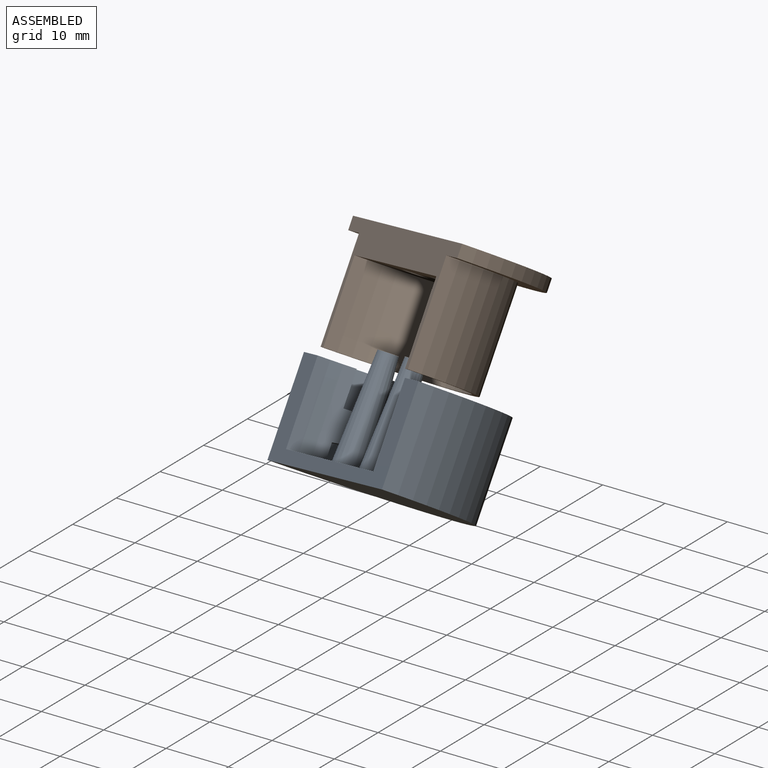
[diagram: assembled view]
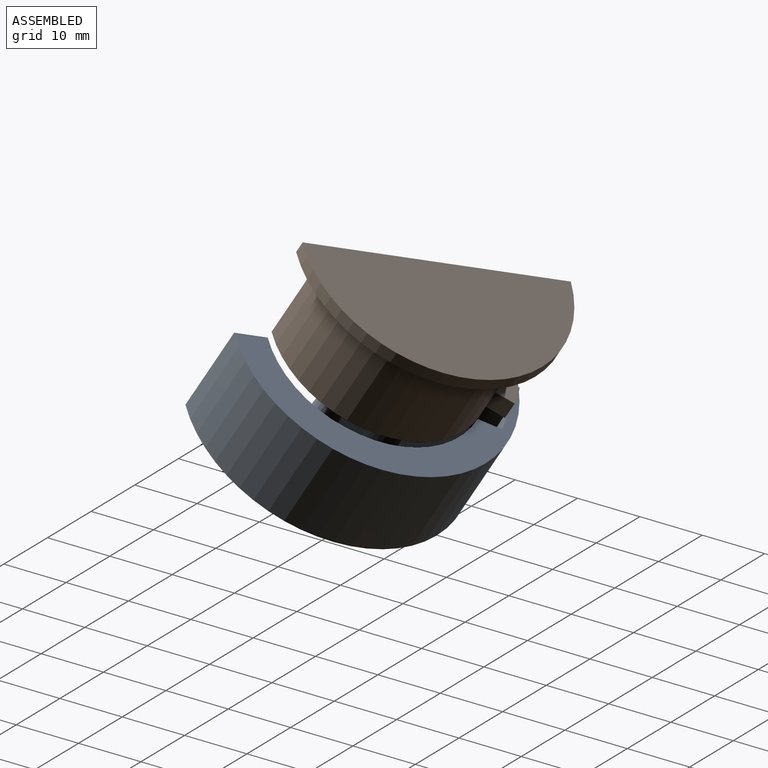
[diagram: assembled view, second angle]
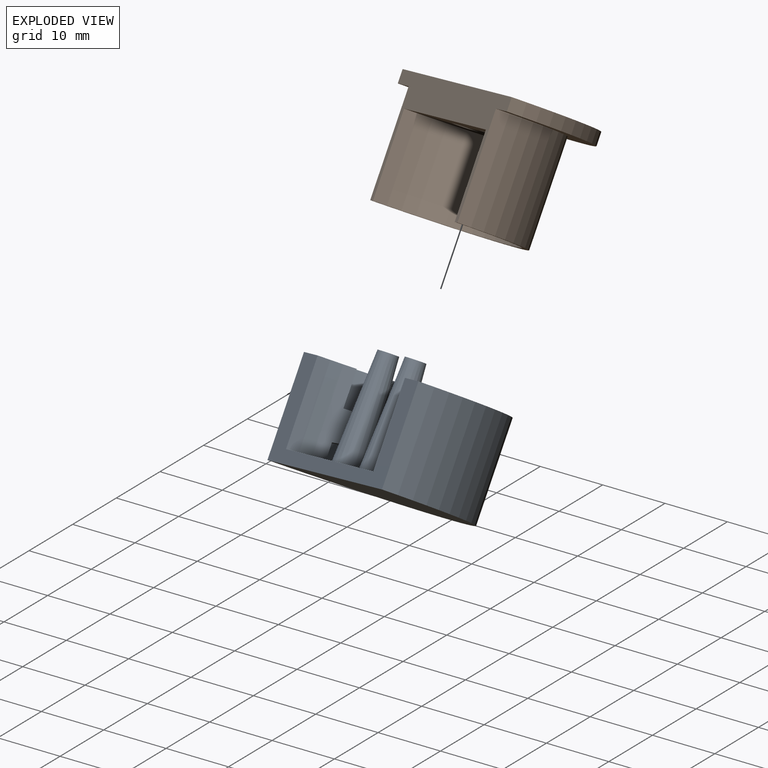
[diagram: exploded view]
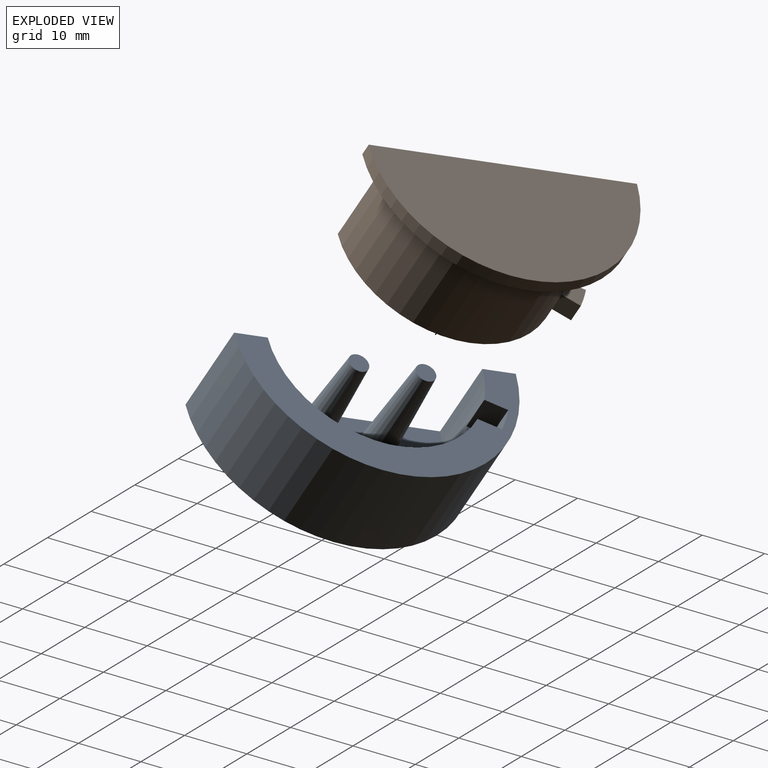
[diagram: exploded view, second angle]
ASSEMBLY  parts=2 mates=2
PART A: 21 faces, bbox 42x21x18 mm
  f0: cylinder r=16mm len=29.19mm, axis (0,0,-1), area 142.7mm2, adj f1,f5,f7,f10,f12,f15
  f1: plane 42x21mm, normal (0,0,1), area 276.5mm2, adj f0,f2,f4,f5,f11,f13,f15
  f2: cylinder r=16mm len=29.19mm, axis (0,0,-1), area 214.6mm2, adj f1,f3,f5,f7,f8,f9,f13,f14
  f3: plane 34.89x14.03mm, normal (0,0,1), area 137.7mm2, adj f2,f11,f13,f14
  f4: cylinder r=21mm len=42mm, axis (0,0,-1), area 989.6mm2, adj f1,f5,f6
  f5: plane 42x15mm, normal (0,-1,0), area 214mm2, adj f0,f1,f2,f4,f6,f7
  f6: plane 42x21mm, normal (0,0,-1), area 692.7mm2, adj f4,f5
  f7: plane 36.65x19.5mm, normal (0,0,1), area 514.7mm2, adj f0,f2,f5,f9,f11,f12,f17,f19
  f8: plane 32.57x10.45mm, normal (0,0,-1), area 119.9mm2, adj f2,f11,f14,f16
  f9: plane 3.29x2.8mm, normal (0.34,0.94,0), area 9.8mm2, adj f2,f7,f11,f16
  f10: plane 34.89x14.03mm, normal (0,0,-1), area 137.7mm2, adj f0,f11,f12,f15
  f11: cylinder r=19.5mm len=36.65mm, axis (0,0,1), area 355.9mm2, adj f1,f3,f7,f8,f9,f10,f12,f13
  f12: plane 11x3.29mm, normal (-0.34,0.94,0), area 38.5mm2, adj f0,f7,f10,f11
  f13: plane 5.5x3.29mm, normal (0.34,0.94,0), area 19.3mm2, adj f1,f2,f3,f11
  f14: plane 4x3.37mm, normal (0.34,-0.94,0), area 14.4mm2, adj f2,f3,f8,f11
  f15: plane 3.37x2mm, normal (-0.34,-0.94,0), area 7.2mm2, adj f0,f1,f10,f11
  f16: plane 5.76x5.68mm, normal (0.05,0.13,-0.99), area 17.9mm2, adj f2,f8,f9,f11
  f17: cone r=2.5mm half-angle=3.6deg, axis (0,0,-1), area 201.5mm2, adj f7,f18
  f18: plane 3x3mm, normal (0,0,1), area 7.1mm2, adj f17
  f19: cone r=2.5mm half-angle=3.6deg, axis (0,0,-1), area 201.5mm2, adj f7,f20
  f20: plane 3x3mm, normal (0,0,1), area 7.1mm2, adj f19
PART B: 17 faces, bbox 40x20x17.8 mm
  f0: cylinder r=16mm len=32mm, axis (0,0,-1), area 785.8mm2, adj f1,f3,f11,f12,f13,f15,f16
  f1: plane 40x17.8mm, normal (0,-1,0), area 201.6mm2, adj f0,f2,f3,f4,f5,f10,f11
  f2: cylinder r=15mm len=30mm, axis (0,0,-1), area 603.2mm2, adj f1,f3,f5
  f3: plane 32x16mm, normal (0,0,1), area 48.7mm2, adj f0,f1,f2
  f4: plane 40x20mm, normal (0,0,-1), area 628.3mm2, adj f1,f10
  f5: plane 30x15mm, normal (0,0,1), area 331.9mm2, adj f1,f2,f6,f8
  f6: cylinder r=1.85mm len=3.7mm, axis (0,0,-1), area 34.9mm2, adj f5,f7
  f7: plane 3.7x3.7mm, normal (0,0,1), area 10.8mm2, adj f6
  f8: cylinder r=1.85mm len=3.7mm, axis (0,0,-1), area 34.9mm2, adj f5,f9
  f9: plane 3.7x3.7mm, normal (0,0,1), area 10.8mm2, adj f8
  f10: cylinder r=20mm len=40mm, axis (0,0,-1), area 125.7mm2, adj f1,f4,f11
  f11: plane 40x20mm, normal (0,0,1), area 226.2mm2, adj f0,f1,f10
  f12: plane 4.05x4.02mm, normal (0,0,1), area 9.2mm2, adj f0,f14,f15,f16
  f13: plane 4.05x4.02mm, normal (0,0,-1), area 9.2mm2, adj f0,f14,f15,f16
  f14: cylinder r=19mm len=3mm, axis (0,0,1), area 9.9mm2, adj f12,f13,f15,f16
  f15: plane 3x2.8mm, normal (0.36,-0.93,0), area 9mm2, adj f0,f12,f13,f14
  f16: plane 3x2.57mm, normal (-0.52,0.86,0), area 9mm2, adj f0,f12,f13,f14
PLACE A rot(axis=(-0.64,-0.19,-0.74),48.9deg) t=(-79.84,-48.17,87.21)mm
PLACE B rot(axis=(0.31,0.91,-0.27),170.8deg) t=(-79.25,-30.03,115.96)mm
MATE cylindrical A.f0 <-> B.f0  axis (-0.02,-0.53,-0.85) through (-79.69,-43.63,94.39)mm
MATE planar B.f1 <-> A.f5  axis (-0.6,-0.67,0.44) through (-92.06,-22.84,109.32)mm
